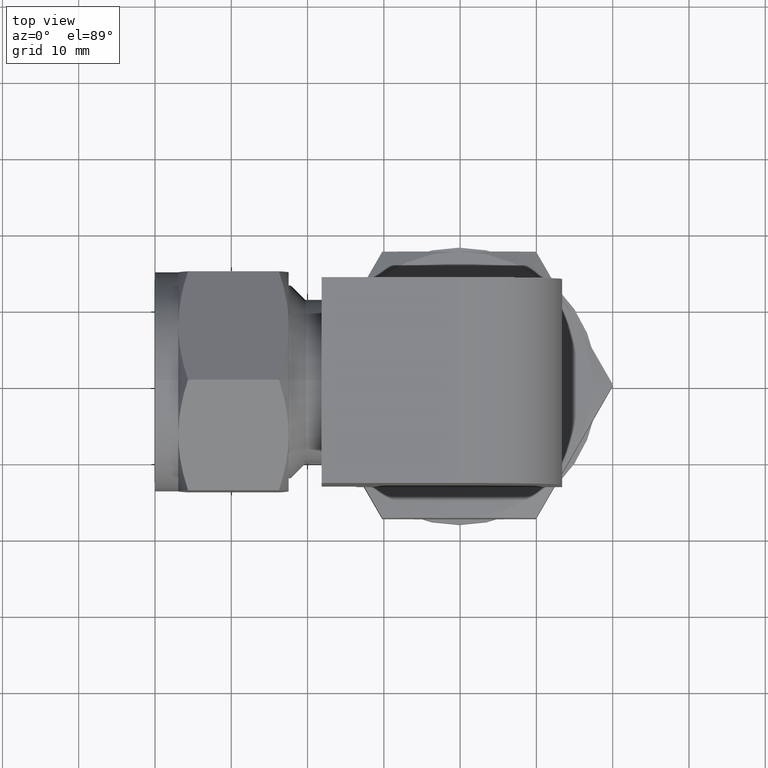
[diagram: clean part render]
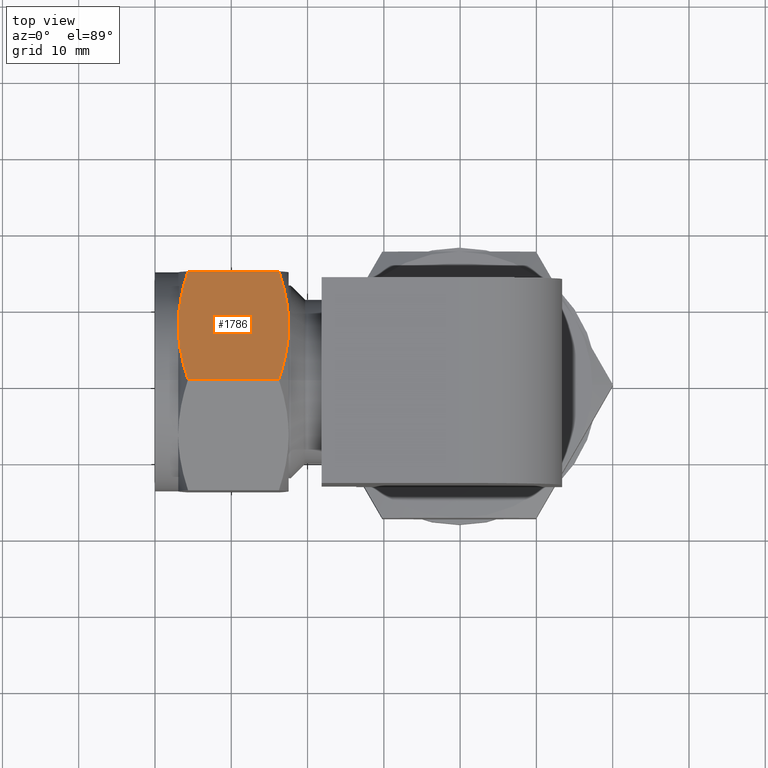
[diagram: same view with one face highlighted and labeled with its STEP entity id]
A machine part, top view. The second image highlights one B-rep face of the part: STEP entity #1786.
In plain terms, the highlighted planar face has unit normal (-0, 0.5, 0.866).
Its self-contained STEP definition (entity closure, byte-faithful):
#72 = CARTESIAN_POINT ( 'NONE',  ( 17.52599999999999980, 7.175499999999999545, 12.42833056971049999 ) ) ;
#133 = VERTEX_POINT ( 'NONE', #1209 ) ;
#185 = DIRECTION ( 'NONE',  ( -1.922962686383559626E-16, 0.4999999999999998890, 0.8660254037844387076 ) ) ;
#346 = CARTESIAN_POINT ( 'NONE',  ( 16.24422037980699685, 7.848377335441971481E-17, 16.57110742628060152 ) ) ;
#362 = CARTESIAN_POINT ( 'NONE',  ( 17.52599999999999980, 14.35099999999999909, 8.285553713140330956 ) ) ;
#367 = AXIS2_PLACEMENT_3D ( 'NONE', #2083, #185, #2453 ) ;
#462 = CARTESIAN_POINT ( 'NONE',  ( 4.329779620193009215, 14.35099999999999909, 8.285553713140309640 ) ) ;
#512 = CARTESIAN_POINT ( 'NONE',  ( 3.048000000000000043, 7.175499999999999545, 12.42833056971049999 ) ) ;
#524 = ORIENTED_EDGE ( 'NONE', *, *, #2220, .F. ) ;
#577 = CARTESIAN_POINT ( 'NONE',  ( 17.52599999999999980, 7.175499999999999545, 12.42833056971049999 ) ) ;
#583 =( BOUNDED_CURVE ( )  B_SPLINE_CURVE ( 2, ( #1165, #737, #577 ),
 .UNSPECIFIED., .F., .F. ) 
 B_SPLINE_CURVE_WITH_KNOTS ( ( 3, 3 ),
 ( 0.000000000000000000, 0.3309259911080109640 ),
 .UNSPECIFIED. ) 
 CURVE ( )  GEOMETRIC_REPRESENTATION_ITEM ( )  RATIONAL_B_SPLINE_CURVE ( ( 1.000000000000000000, 1.037954849301999882, 1.000000000000000000 ) ) 
 REPRESENTATION_ITEM ( '' )  );
#630 = EDGE_CURVE ( 'NONE', #1820, #1310, #1578, .T. ) ;
#674 = ORIENTED_EDGE ( 'NONE', *, *, #1256, .T. ) ;
#690 = VECTOR ( 'NONE', #1533, 1000.000000000000000 ) ;
#705 =( BOUNDED_CURVE ( )  B_SPLINE_CURVE ( 2, ( #72, #1602, #1427 ),
 .UNSPECIFIED., .F., .F. ) 
 B_SPLINE_CURVE_WITH_KNOTS ( ( 3, 3 ),
 ( 0.3309259911080109640, 0.6618519822160219279 ),
 .UNSPECIFIED. ) 
 CURVE ( )  GEOMETRIC_REPRESENTATION_ITEM ( )  RATIONAL_B_SPLINE_CURVE ( ( 1.000000000000000000, 1.037954849302019866, 1.000000000000000000 ) ) 
 REPRESENTATION_ITEM ( '' )  );
#737 = CARTESIAN_POINT ( 'NONE',  ( 17.52600000000000335, 3.845338860579072815, 14.35099999999999909 ) ) ;
#783 = VERTEX_POINT ( 'NONE', #2115 ) ;
#856 = LINE ( 'NONE', #1996, #2374 ) ;
#941 =( BOUNDED_CURVE ( )  B_SPLINE_CURVE ( 2, ( #1261, #1837, #512 ),
 .UNSPECIFIED., .F., .F. ) 
 B_SPLINE_CURVE_WITH_KNOTS ( ( 3, 3 ),
 ( 0.000000000000000000, 0.3309259911080119632 ),
 .UNSPECIFIED. ) 
 CURVE ( )  GEOMETRIC_REPRESENTATION_ITEM ( )  RATIONAL_B_SPLINE_CURVE ( ( 1.000000000000000000, 1.037954849302049842, 1.000000000000000000 ) ) 
 REPRESENTATION_ITEM ( '' )  );
#1049 = CARTESIAN_POINT ( 'NONE',  ( 4.329779620193009215, -1.973976537783529717E-14, 16.57110742628060152 ) ) ;
#1058 = ORIENTED_EDGE ( 'NONE', *, *, #1215, .T. ) ;
#1090 = VERTEX_POINT ( 'NONE', #346 ) ;
#1165 = CARTESIAN_POINT ( 'NONE',  ( 16.24422037980699685, 7.848377335441971481E-17, 16.57110742628060152 ) ) ;
#1180 = ORIENTED_EDGE ( 'NONE', *, *, #630, .T. ) ;
#1204 = CARTESIAN_POINT ( 'NONE',  ( 3.048000000000000043, 7.175499999999999545, 12.42833056971049999 ) ) ;
#1209 = CARTESIAN_POINT ( 'NONE',  ( 16.24422037980699685, 14.35099999999999909, 8.285553713140309640 ) ) ;
#1215 = EDGE_CURVE ( 'NONE', #1090, #783, #583, .T. ) ;
#1216 = EDGE_LOOP ( 'NONE', ( #1180, #524, #1058, #674, #1833, #1674 ) ) ;
#1256 = EDGE_CURVE ( 'NONE', #783, #133, #705, .T. ) ;
#1261 = CARTESIAN_POINT ( 'NONE',  ( 4.329779620193009215, 14.35099999999999909, 8.285553713140309640 ) ) ;
#1301 = PLANE ( 'NONE',  #367 ) ;
#1310 = VERTEX_POINT ( 'NONE', #1049 ) ;
#1401 = DIRECTION ( 'NONE',  ( -1.000000000000000000, 1.359586170115859931E-32, -2.220446049250309876E-16 ) ) ;
#1427 = CARTESIAN_POINT ( 'NONE',  ( 16.24422037980699685, 14.35099999999999909, 8.285553713140309640 ) ) ;
#1533 = DIRECTION ( 'NONE',  ( -1.000000000000000000, 1.359586170115859931E-32, -2.220446049250309876E-16 ) ) ;
#1578 =( BOUNDED_CURVE ( )  B_SPLINE_CURVE ( 2, ( #2235, #1851, #1810 ),
 .UNSPECIFIED., .F., .F. ) 
 B_SPLINE_CURVE_WITH_KNOTS ( ( 3, 3 ),
 ( 0.3309259911080119632, 0.6618519822160239263 ),
 .UNSPECIFIED. ) 
 CURVE ( )  GEOMETRIC_REPRESENTATION_ITEM ( )  RATIONAL_B_SPLINE_CURVE ( ( 1.000000000000000000, 1.037954849302029858, 1.000000000000000000 ) ) 
 REPRESENTATION_ITEM ( '' )  );
#1602 = CARTESIAN_POINT ( 'NONE',  ( 17.52599999999999980, 10.50566113942089430, 10.50566113942099200 ) ) ;
#1623 = VERTEX_POINT ( 'NONE', #462 ) ;
#1641 = EDGE_CURVE ( 'NONE', #1623, #1820, #941, .T. ) ;
#1674 = ORIENTED_EDGE ( 'NONE', *, *, #1641, .T. ) ;
#1786 = ADVANCED_FACE ( 'NONE', ( #2273 ), #1301, .T. ) ;
#1810 = CARTESIAN_POINT ( 'NONE',  ( 4.329779620193009215, -1.973976537783529717E-14, 16.57110742628060152 ) ) ;
#1820 = VERTEX_POINT ( 'NONE', #1204 ) ;
#1833 = ORIENTED_EDGE ( 'NONE', *, *, #2137, .T. ) ;
#1837 = CARTESIAN_POINT ( 'NONE',  ( 3.048000000000001819, 10.50566113942099555, 10.50566113942099555 ) ) ;
#1851 = CARTESIAN_POINT ( 'NONE',  ( 3.048000000000003151, 3.845338860579043505, 14.35100000000000975 ) ) ;
#1996 = CARTESIAN_POINT ( 'NONE',  ( 17.52599999999999980, -3.834620654752719577E-15, 16.57110742628060152 ) ) ;
#2076 = LINE ( 'NONE', #362, #690 ) ;
#2083 = CARTESIAN_POINT ( 'NONE',  ( 17.52599999999999980, 14.35099999999999909, 8.285553713140330956 ) ) ;
#2115 = CARTESIAN_POINT ( 'NONE',  ( 17.52599999999999980, 7.175499999999999545, 12.42833056971049999 ) ) ;
#2137 = EDGE_CURVE ( 'NONE', #133, #1623, #2076, .T. ) ;
#2220 = EDGE_CURVE ( 'NONE', #1090, #1310, #856, .T. ) ;
#2235 = CARTESIAN_POINT ( 'NONE',  ( 3.048000000000000043, 7.175499999999999545, 12.42833056971049999 ) ) ;
#2273 = FACE_OUTER_BOUND ( 'NONE', #1216, .T. ) ;
#2374 = VECTOR ( 'NONE', #1401, 1000.000000000000000 ) ;
#2453 = DIRECTION ( 'NONE',  ( 1.000000000000000000, 3.845925372767120237E-16, 0.000000000000000000 ) ) ;